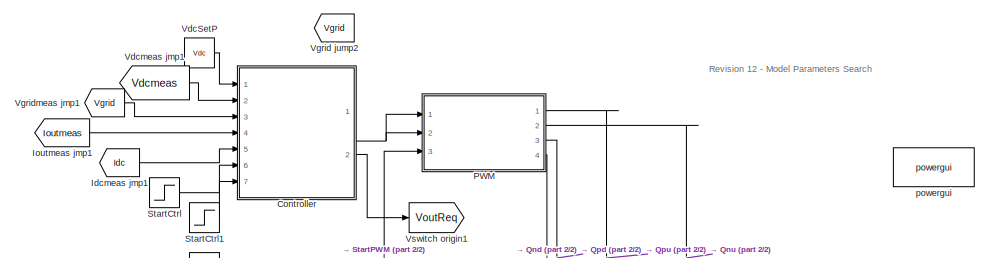
[diagram: root canvas - part 1/2, full width, top band]
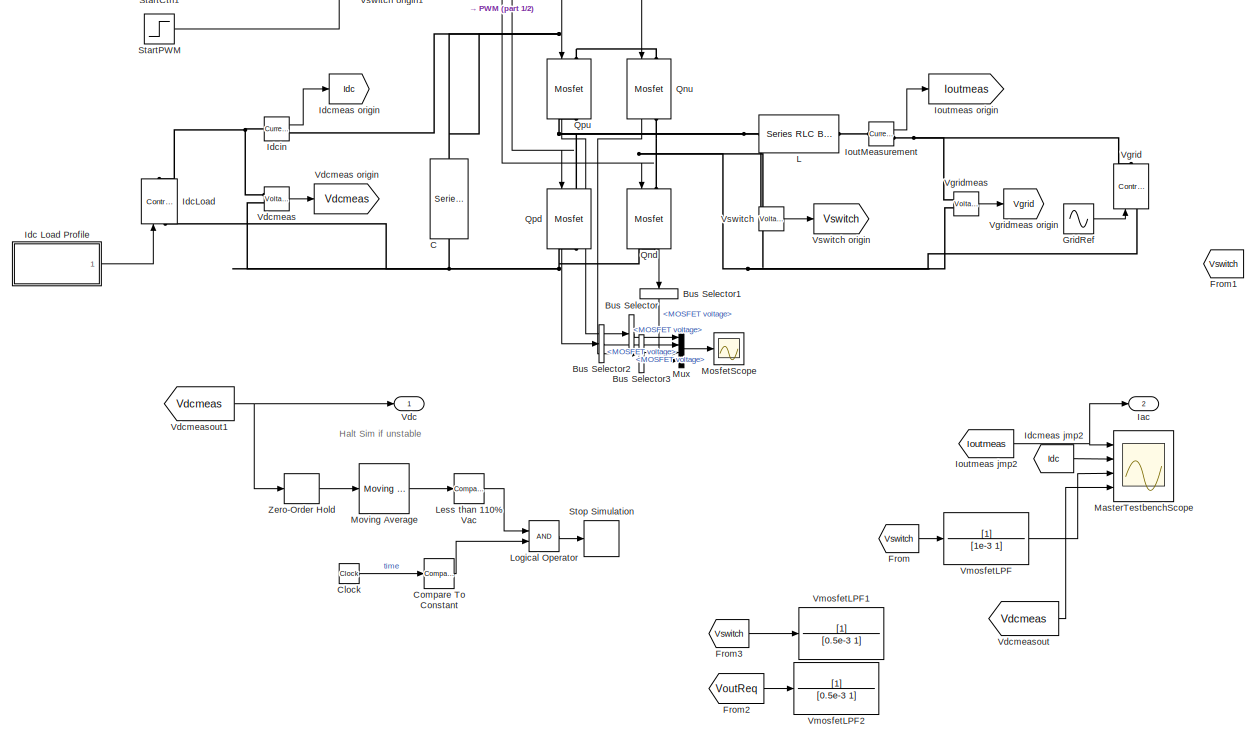
[diagram: root canvas - part 2/2, most of the canvas]
MODEL slx_c6c2b935a5d7
KIND model
CONFIG AbsTol = auto
CONFIG EnableMultiTasking = on
CONFIG FixedStep = auto
CONFIG MaxStep = 1e-4
CONFIG MinStep = auto
CONFIG RelTol = 1e-3
CONFIG SampleTimeConstraint = Unconstrained
CONFIG Solver = VariableStepAuto
CONFIG SolverName = VariableStepAuto
CONFIG StartTime = 0.0
CONFIG StopTime = 5
BLOCK [BusSelector] Bus Selector
  OutputAsBus = off
  OutputSignals = MOSFET voltage
  Ports = [1, 1]
BLOCK [BusSelector] Bus Selector1
  OutputAsBus = off
  OutputSignals = MOSFET voltage
  Ports = [1, 1]
BLOCK [BusSelector] Bus Selector2
  OutputAsBus = off
  OutputSignals = MOSFET voltage
  Ports = [1, 1]
BLOCK [BusSelector] Bus Selector3
  OutputAsBus = off
  OutputSignals = MOSFET voltage
  Ports = [1, 1]
BLOCK [Reference] C  REF=powerlib/Elements/Series RLC Branch
  Ports = [0, 0, 0, 0, 0, 1, 1]
  SourceBlock = powerlib/Elements/Series RLC Branch
  SourceProductBaseCode = PS
  SourceProductName = Simscape Power Systems
  SourceType = Series RLC Branch
BLOCK [Clock] Clock
  Decimation = 1000
BLOCK [Reference] Compare To Constant  REF=simulink/Logic and Bit
Operations/Compare
To Constant
  Ports = [1, 1]
  SourceBlock = simulink/Logic and Bit\nOperations/Compare\nTo Constant
  SourceProductBaseCode = SL
  SourceProductName = Simulink
  SourceType = Compare To Constant
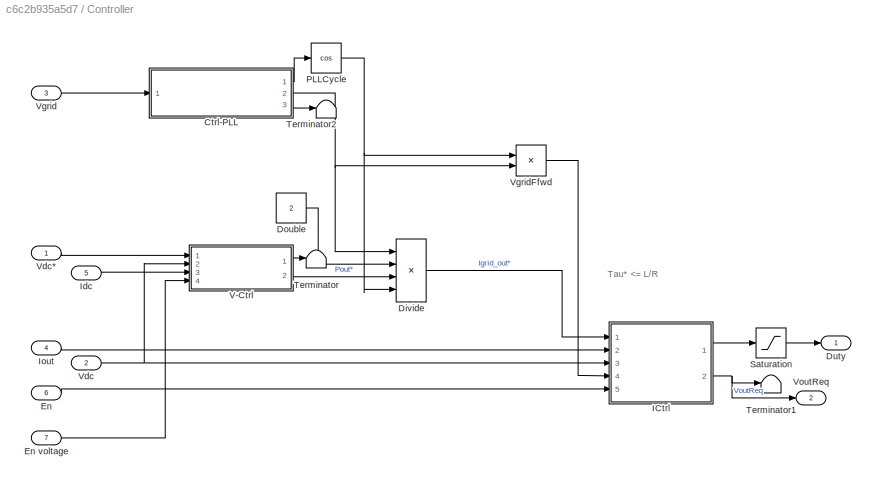
BLOCK [SubSystem] Controller
  Ports = [7, 2]
  RequestExecContextInheritance = off
  Variant = off
BLOCK [ModelReference] Controller/Ctrl-PLL
  ModelNameDialog = PLL.slx
  ModelReferenceVersion = 1.11
  Ports = [1, 3]
  Variant = off
BLOCK [Product] Controller/Divide
  InputSameDT = off
  Inputs = /***
  OutDataTypeStr = Inherit: Inherit via internal rule
  Ports = [4, 1]
  RndMeth = Floor
  SaturateOnIntegerOverflow = off
BLOCK [Constant] Controller/Double
  Value = 2
BLOCK [Outport] Controller/Duty
  IconDisplay = Port number
BLOCK [Inport] Controller/En
  IconDisplay = Port number
  Port = 6
BLOCK [Inport] Controller/En voltage
  IconDisplay = Port number
  Port = 7
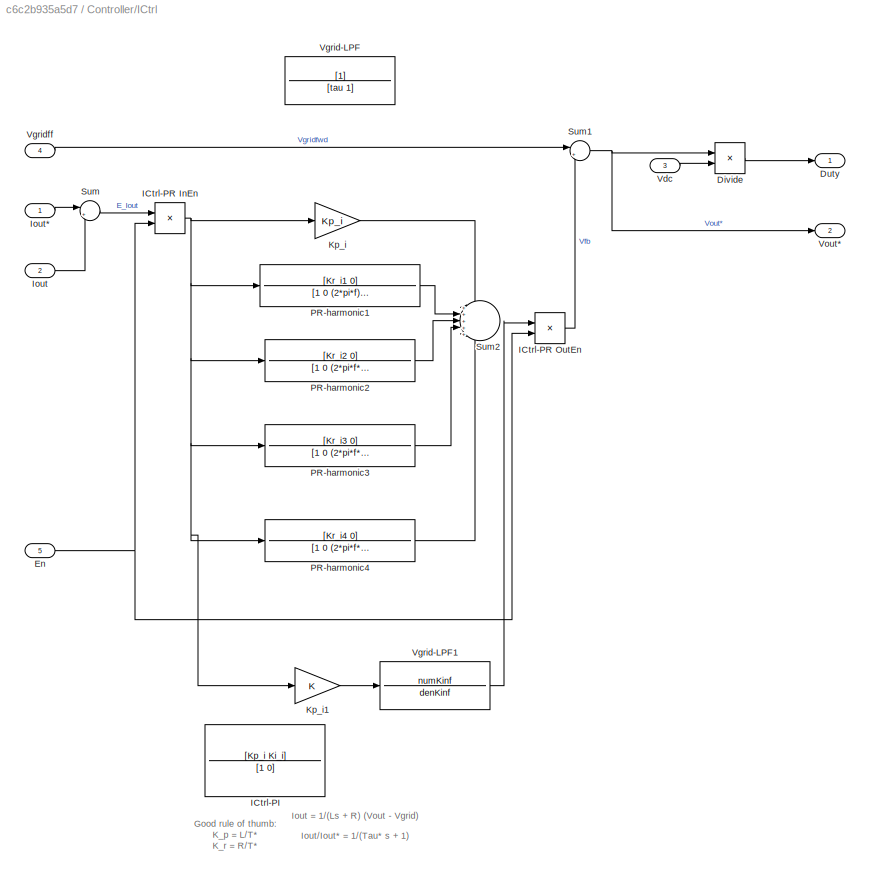
BLOCK [SubSystem] Controller/ICtrl
  Ports = [5, 2]
  RequestExecContextInheritance = off
  TreatAsAtomicUnit = on
  Variant = off
BLOCK [Product] Controller/ICtrl/Divide
  InputSameDT = off
  Inputs = */
  OutDataTypeStr = Inherit: Inherit via internal rule
  Ports = [2, 1]
  RndMeth = Floor
  SaturateOnIntegerOverflow = off
BLOCK [Outport] Controller/ICtrl/Duty
  IconDisplay = Port number
BLOCK [Inport] Controller/ICtrl/En
  IconDisplay = Port number
  Port = 5
BLOCK [TransferFcn] Controller/ICtrl/ICtrl-PI
  Commented = through
  Denominator = [1 0]
  Numerator = [Kp_i Ki_i]
BLOCK [Product] Controller/ICtrl/ICtrl-PR InEn
  InputSameDT = off
  OutDataTypeStr = Inherit: Inherit via internal rule
  Ports = [2, 1]
  RndMeth = Floor
  SaturateOnIntegerOverflow = off
BLOCK [Product] Controller/ICtrl/ICtrl-PR OutEn
  InputSameDT = off
  OutDataTypeStr = Inherit: Inherit via internal rule
  Ports = [2, 1]
  RndMeth = Floor
  SaturateOnIntegerOverflow = off
BLOCK [Inport] Controller/ICtrl/Iout
  IconDisplay = Port number
  Port = 2
BLOCK [Inport] Controller/ICtrl/Iout*
  IconDisplay = Port number
BLOCK [Gain] Controller/ICtrl/Kp_i
  Gain = Kp_i
  OutDataTypeStr = Inherit: Inherit via internal rule
  ParamDataTypeStr = Inherit: Inherit via internal rule
  SaturateOnIntegerOverflow = off
BLOCK [Gain] Controller/ICtrl/Kp_i1
  OutDataTypeStr = Inherit: Inherit via internal rule
  ParamDataTypeStr = Inherit: Inherit via internal rule
  SaturateOnIntegerOverflow = off
BLOCK [TransferFcn] Controller/ICtrl/PR-harmonic1
  Denominator = [1 0 (2*pi*f)^2]
  Numerator = [Kr_i1 0]
BLOCK [TransferFcn] Controller/ICtrl/PR-harmonic2
  Denominator = [1 0 (2*pi*f*3)^2]
  Numerator = [Kr_i2 0]
BLOCK [TransferFcn] Controller/ICtrl/PR-harmonic3
  Denominator = [1 0 (2*pi*f*5)^2]
  Numerator = [Kr_i3 0]
BLOCK [TransferFcn] Controller/ICtrl/PR-harmonic4
  Denominator = [1 0 (2*pi*f*7)^2]
  Numerator = [Kr_i4 0]
BLOCK [Sum] Controller/ICtrl/Sum
  IconShape = round
  InputSameDT = off
  Inputs = |+-
  OutDataTypeStr = Inherit: Inherit via internal rule
  Ports = [2, 1]
  SaturateOnIntegerOverflow = off
BLOCK [Sum] Controller/ICtrl/Sum1
  IconShape = round
  InputSameDT = off
  Inputs = |++
  OutDataTypeStr = Inherit: Inherit via internal rule
  Ports = [2, 1]
  SaturateOnIntegerOverflow = off
BLOCK [Sum] Controller/ICtrl/Sum2
  IconShape = round
  InputSameDT = off
  Inputs = +++++
  OutDataTypeStr = Inherit: Inherit via internal rule
  Ports = [5, 1]
  SaturateOnIntegerOverflow = off
BLOCK [Inport] Controller/ICtrl/Vdc
  IconDisplay = Port number
  Port = 3
BLOCK [TransferFcn] Controller/ICtrl/Vgrid-LPF
  Commented = on
  Denominator = [tau 1]
BLOCK [TransferFcn] Controller/ICtrl/Vgrid-LPF1
  Denominator = denKinf
  Numerator = numKinf
BLOCK [Inport] Controller/ICtrl/Vgridff
  IconDisplay = Port number
  Port = 4
BLOCK [Outport] Controller/ICtrl/Vout*
  IconDisplay = Port number
  Port = 2
BLOCK [Inport] Controller/Idc
  IconDisplay = Port number
  Port = 5
BLOCK [Inport] Controller/Iout
  IconDisplay = Port number
  Port = 4
BLOCK [Trigonometry] Controller/PLLCycle
  Operator = cos
  Ports = [1, 1]
BLOCK [Saturate] Controller/Saturation
  InputPortMap = u0
  LinearizeAsGain = off
  LowerLimit = -1
  Ports = [1, 1]
  UpperLimit = 1
BLOCK [Terminator] Controller/Terminator
BLOCK [Terminator] Controller/Terminator1
BLOCK [Terminator] Controller/Terminator2
BLOCK [SubSystem] Controller/V-Ctrl
  Ports = [4, 2]
  RequestExecContextInheritance = off
  TreatAsAtomicUnit = on
  Variant = off
BLOCK [Inport] Controller/V-Ctrl/En
  IconDisplay = Port number
  Port = 4
BLOCK [Inport] Controller/V-Ctrl/Idc
  IconDisplay = Port number
  Port = 3
BLOCK [TransferFcn] Controller/V-Ctrl/Idc-Feedfwd-LPF
  Commented = on
  Denominator = [(1/20) 1]
BLOCK [Product] Controller/V-Ctrl/IdcEn
  Commented = on
  InputSameDT = off
  OutDataTypeStr = Inherit: Inherit via internal rule
  Ports = [2, 1]
  RndMeth = Floor
  SaturateOnIntegerOverflow = off
BLOCK [Outport] Controller/V-Ctrl/Idc_out*
  IconDisplay = Port number
BLOCK [TransferFcn] Controller/V-Ctrl/NotchF-2w
  Denominator = [1 2*bw w_n^2]
  Numerator = [1 floorcoeff (w_n^2)]
BLOCK [Product] Controller/V-Ctrl/Pout calc
  InputSameDT = off
  Inputs = **
  OutDataTypeStr = Inherit: Inherit via internal rule
  Ports = [2, 1]
  RndMeth = Floor
  SaturateOnIntegerOverflow = off
BLOCK [Outport] Controller/V-Ctrl/Pout*
  IconDisplay = Port number
  Port = 2
BLOCK [Saturate] Controller/V-Ctrl/Saturation
  InputPortMap = u0
  LinearizeAsGain = off
  LowerLimit = -2*Idcmax
  Ports = [1, 1]
  UpperLimit = 2*Idcmax
BLOCK [Sum] Controller/V-Ctrl/Sum
  IconShape = round
  InputSameDT = off
  Inputs = |+-
  OutDataTypeStr = Inherit: Inherit via internal rule
  Ports = [2, 1]
  SaturateOnIntegerOverflow = off
BLOCK [Sum] Controller/V-Ctrl/Sum1
  IconShape = round
  InputSameDT = off
  Inputs = |++
  OutDataTypeStr = Inherit: Inherit via internal rule
  Ports = [2, 1]
  SaturateOnIntegerOverflow = off
BLOCK [TransferFcn] Controller/V-Ctrl/VCtrl-PI
  Denominator = [1 0]
  Numerator = [Kp_v Ki_v]
BLOCK [Inport] Controller/V-Ctrl/Vdc
  IconDisplay = Port number
  Port = 2
BLOCK [Inport] Controller/V-Ctrl/Vdc*
  IconDisplay = Port number
BLOCK [Product] Controller/V-Ctrl/VdcEn
  InputSameDT = off
  OutDataTypeStr = Inherit: Inherit via internal rule
  Ports = [2, 1]
  RndMeth = Floor
  SaturateOnIntegerOverflow = off
BLOCK [Inport] Controller/Vdc
  IconDisplay = Port number
  Port = 2
BLOCK [Inport] Controller/Vdc*
  IconDisplay = Port number
BLOCK [Inport] Controller/Vgrid
  IconDisplay = Port number
  Port = 3
BLOCK [Product] Controller/VgridFfwd
  InputSameDT = off
  Inputs = **
  OutDataTypeStr = Inherit: Inherit via internal rule
  Ports = [2, 1]
  RndMeth = Floor
  SaturateOnIntegerOverflow = off
BLOCK [Outport] Controller/VoutReq
  IconDisplay = Port number
  Port = 2
BLOCK [From] From
  GotoTag = Vswitch
BLOCK [From] From1
  GotoTag = Vswitch
BLOCK [From] From2
  GotoTag = VoutReq
BLOCK [From] From3
  GotoTag = Vswitch
BLOCK [Sin] GridRef
  Amplitude = Vacpp
  Frequency = 2*pi*f
  Phase = pi
  Ports = [0, 1]
  SampleTime = 0
BLOCK [Outport] Iac
  IconDisplay = Port number
  Port = 2
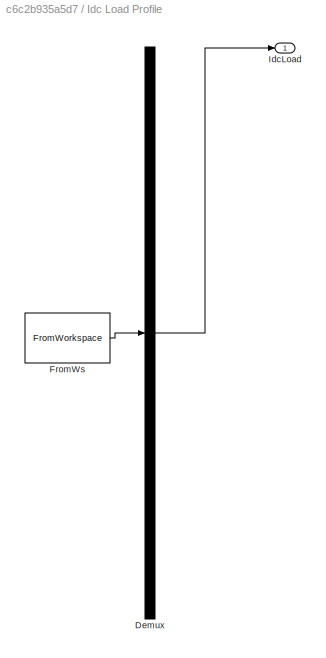
BLOCK [SubSystem] Idc Load Profile
  ClipboardFcn = sigbuilder_block('clipboard');
  CloseFcn = sigbuilder_block('close');
  ContinueFcn = sigbuilder_block('continue');
  CopyFcn = sigbuilder_block('copy');
  DeleteFcn = sigbuilder_block('delete');
  LoadFcn = sigbuilder_block('load');
  MaskHideContents = on
  ModelCloseFcn = sigbuilder_block('modelClose');
  NameChangeFcn = sigbuilder_block('namechange');
  OpenFcn = sigbuilder_block('open',[6 30 1012.5 447.75 ]);
  PauseFcn = sigbuilder_block('pause');
  Ports = [0, 1]
  PreSaveFcn = sigbuilder_block('preSave');
  RequestExecContextInheritance = off
  StartFcn = sigbuilder_block('start');
  StopFcn = sigbuilder_block('stop');
  Tag = STV Subsys
  Variant = off
BLOCK [Demux] Idc Load Profile/Demux
  Outputs = 1
  Ports = [1, 1]
  Tag = STV Demux
BLOCK [FromWorkspace] Idc Load Profile/FromWs
  SampleTime = 0
  Tag = STV FromWs
  VariableName = tuvar
  ZeroCross = on
BLOCK [Outport] Idc Load Profile/IdcLoad
  IconDisplay = Port number
  Tag = STV Outport
BLOCK [Reference] IdcLoad  REF=powerlib/Electrical
Sources/Controlled Current Source
  Ports = [1, 0, 0, 0, 0, 1, 1]
  SourceBlock = powerlib/Electrical\nSources/Controlled Current Source
  SourceProductBaseCode = PS
  SourceProductName = Simscape Power Systems
  SourceType = Controlled Current Source
BLOCK [Reference] Idcin  REF=powerlib/Measurements/Current Measurement
  Ports = [0, 1, 0, 0, 0, 1, 1]
  SourceBlock = powerlib/Measurements/Current Measurement
  SourceProductBaseCode = PS
  SourceProductName = Simscape Power Systems
  SourceType = Current Measurement
  UserDataPersistent = on
BLOCK [From] Idcmeas jmp1
  GotoTag = Idc
BLOCK [From] Idcmeas jmp2
  GotoTag = Idc
BLOCK [Goto] Idcmeas origin
  GotoTag = Idc
BLOCK [Reference] IoutMeasurement  REF=powerlib/Measurements/Current Measurement
  Ports = [0, 1, 0, 0, 0, 1, 1]
  SourceBlock = powerlib/Measurements/Current Measurement
  SourceProductBaseCode = PS
  SourceProductName = Simscape Power Systems
  SourceType = Current Measurement
  UserDataPersistent = on
BLOCK [From] Ioutmeas jmp1
  GotoTag = Ioutmeas
BLOCK [From] Ioutmeas jmp2
  GotoTag = Ioutmeas
BLOCK [Goto] Ioutmeas origin
  GotoTag = Ioutmeas
BLOCK [Reference] L  REF=powerlib/Elements/Series RLC Branch
  Ports = [0, 0, 0, 0, 0, 1, 1]
  SourceBlock = powerlib/Elements/Series RLC Branch
  SourceProductBaseCode = PS
  SourceProductName = Simscape Power Systems
  SourceType = Series RLC Branch
BLOCK [Reference] Less than 110% Vac  REF=simulink/Logic and Bit
Operations/Compare
To Constant
  Ports = [1, 1]
  SourceBlock = simulink/Logic and Bit\nOperations/Compare\nTo Constant
  SourceProductBaseCode = SL
  SourceProductName = Simulink
  SourceType = Compare To Constant
BLOCK [Logic] Logical Operator
  AllPortsSameDT = off
  OutDataTypeStr = boolean
  Ports = [2, 1]
BLOCK [Scope] MasterTestbenchScope
  NumInputPorts = 4
  Ports = [4]
  ScopeSpecificationString = Simulink.scopes.TimeScopeBlockCfg('CurrentConfiguration', extmgr.ConfigurationSet(extmgr.Configuration('Core','General UI',true),extmgr.Configuration('Core','Source UI',true),extmgr.Configuration('Sources','WiredSimulink',true),extmgr.Configuration('Visuals','Time Domain',true,'SerializedDisplays',{struct('MinYLimReal','-80.59413','MaxYLimReal','89.89924','YLabelReal','','MinYLimMag','0.00000','Ma...<+1850ch>
BLOCK [Scope] MosfetScope
  NumInputPorts = 1
  Ports = [1]
  ScopeSpecificationString = Simulink.scopes.TimeScopeBlockCfg('CurrentConfiguration', extmgr.ConfigurationSet(extmgr.Configuration('Core','General UI',true),extmgr.Configuration('Core','Source UI',true),extmgr.Configuration('Sources','WiredSimulink',true,'DataLoggingVariableName','ScopeData1'),extmgr.Configuration('Visuals','Time Domain',true,'SerializedDisplays',{struct('MinYLimReal','-11.23805','MaxYLimReal','85.49034','YL...<+1561ch>
BLOCK [Reference] Moving Average  REF=dspstat3/Moving
Average
  Commented = through
  Ports = [1, 1]
  SourceBlock = dspstat3/Moving\nAverage
  SourceProductBaseCode = DS
  SourceProductName = DSP System Toolbox
  SourceType = dsp.MovingAverage
BLOCK [Mux] Mux
  DisplayOption = bar
  Ports = [4, 1]
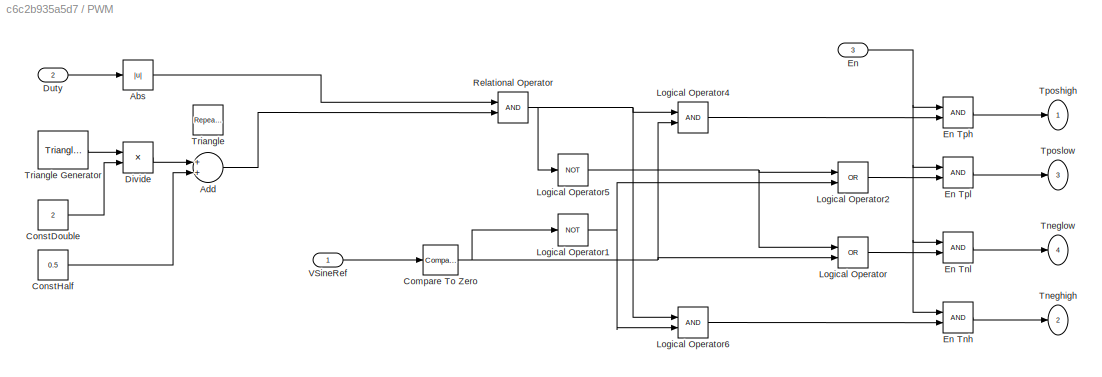
BLOCK [SubSystem] PWM
  Ports = [3, 4]
  RequestExecContextInheritance = off
  Variant = off
BLOCK [Abs] PWM/Abs
  SaturateOnIntegerOverflow = off
BLOCK [Sum] PWM/Add
  InputSameDT = off
  OutDataTypeStr = Inherit: Inherit via internal rule
  Ports = [2, 1]
  SaturateOnIntegerOverflow = off
BLOCK [Reference] PWM/Compare To Zero  REF=simulink/Logic and Bit
Operations/Compare
To Zero
  Ports = [1, 1]
  SourceBlock = simulink/Logic and Bit\nOperations/Compare\nTo Zero
  SourceProductBaseCode = SL
  SourceProductName = Simulink
  SourceType = Compare To Zero
BLOCK [Constant] PWM/ConstDouble
  Value = 2
BLOCK [Constant] PWM/ConstHalf
  Value = 0.5
BLOCK [Product] PWM/Divide
  InputSameDT = off
  Inputs = */
  OutDataTypeStr = Inherit: Inherit via internal rule
  Ports = [2, 1]
  RndMeth = Floor
  SaturateOnIntegerOverflow = off
BLOCK [Inport] PWM/Duty
  IconDisplay = Port number
  Port = 2
BLOCK [Inport] PWM/En
  IconDisplay = Port number
  Port = 3
BLOCK [Logic] PWM/En Tnh
  AllPortsSameDT = off
  OutDataTypeStr = boolean
  Ports = [2, 1]
BLOCK [Logic] PWM/En Tnl
  AllPortsSameDT = off
  OutDataTypeStr = boolean
  Ports = [2, 1]
BLOCK [Logic] PWM/En Tph
  AllPortsSameDT = off
  OutDataTypeStr = boolean
  Ports = [2, 1]
BLOCK [Logic] PWM/En Tpl
  AllPortsSameDT = off
  OutDataTypeStr = boolean
  Ports = [2, 1]
BLOCK [Logic] PWM/Logical Operator
  AllPortsSameDT = off
  Operator = OR
  OutDataTypeStr = boolean
  Ports = [2, 1]
BLOCK [Logic] PWM/Logical Operator1
  AllPortsSameDT = off
  Operator = NOT
  OutDataTypeStr = boolean
  Ports = [1, 1]
BLOCK [Logic] PWM/Logical Operator2
  AllPortsSameDT = off
  Operator = OR
  OutDataTypeStr = boolean
  Ports = [2, 1]
BLOCK [Logic] PWM/Logical Operator4
  AllPortsSameDT = off
  OutDataTypeStr = boolean
  Ports = [2, 1]
BLOCK [Logic] PWM/Logical Operator5
  AllPortsSameDT = off
  Operator = NOT
  OutDataTypeStr = boolean
  Ports = [1, 1]
BLOCK [Logic] PWM/Logical Operator6
  AllPortsSameDT = off
  OutDataTypeStr = boolean
  Ports = [2, 1]
BLOCK [RelationalOperator] PWM/Relational Operator
  InputSameDT = off
  OutDataTypeStr = boolean
  Ports = [2, 1]
BLOCK [Outport] PWM/Tneghigh
  IconDisplay = Port number
  Port = 2
BLOCK [Outport] PWM/Tneglow
  IconDisplay = Port number
  Port = 4
BLOCK [Outport] PWM/Tposhigh
  IconDisplay = Port number
BLOCK [Outport] PWM/Tposlow
  IconDisplay = Port number
  Port = 3
BLOCK [Reference] PWM/Triangle  REF=simulink/Sources/Repeating
Sequence
  Commented = on
  Ports = [0, 1]
  SourceBlock = simulink/Sources/Repeating\nSequence
  SourceProductBaseCode = SL
  SourceProductName = Simulink
  SourceType = Repeating table
BLOCK [Reference] PWM/Triangle Generator  REF=powerlib_meascontrol/Pulse & Signal
Generators/Triangle
Generator
  Ports = [0, 1]
  SourceBlock = powerlib_meascontrol/Pulse & Signal\nGenerators/Triangle\nGenerator
  SourceProductBaseCode = PS
  SourceProductName = Simscape Power Systems
  SourceType = Triangle Generator
BLOCK [Inport] PWM/VSineRef
  IconDisplay = Port number
BLOCK [Reference] Qnd  REF=powerlib/Power
Electronics/Mosfet
  Ports = [1, 1, 0, 0, 0, 1, 1]
  SourceBlock = powerlib/Power\nElectronics/Mosfet
  SourceProductBaseCode = PS
  SourceProductName = Simscape Power Systems
  SourceType = Mosfet
BLOCK [Reference] Qnu  REF=powerlib/Power
Electronics/Mosfet
  Ports = [1, 1, 0, 0, 0, 1, 1]
  SourceBlock = powerlib/Power\nElectronics/Mosfet
  SourceProductBaseCode = PS
  SourceProductName = Simscape Power Systems
  SourceType = Mosfet
BLOCK [Reference] Qpd  REF=powerlib/Power
Electronics/Mosfet
  Ports = [1, 1, 0, 0, 0, 1, 1]
  SourceBlock = powerlib/Power\nElectronics/Mosfet
  SourceProductBaseCode = PS
  SourceProductName = Simscape Power Systems
  SourceType = Mosfet
BLOCK [Reference] Qpu  REF=powerlib/Power
Electronics/Mosfet
  Ports = [1, 1, 0, 0, 0, 1, 1]
  SourceBlock = powerlib/Power\nElectronics/Mosfet
  SourceProductBaseCode = PS
  SourceProductName = Simscape Power Systems
  SourceType = Mosfet
BLOCK [Step] StartCtrl
  SampleTime = 0
  Time = 0.2
BLOCK [Step] StartCtrl1
  SampleTime = 0
  Time = 0.3
BLOCK [Step] StartPWM
  SampleTime = 0
  Time = 0.2
BLOCK [Stop] Stop Simulation
BLOCK [Outport] Vdc
  IconDisplay = Port number
BLOCK [Constant] VdcSetP
  Value = Vdc
BLOCK [Reference] Vdcmeas  REF=powerlib/Measurements/Voltage Measurement
  Ports = [0, 1, 0, 0, 0, 2]
  SourceBlock = powerlib/Measurements/Voltage Measurement
  SourceProductBaseCode = PS
  SourceProductName = Simscape Power Systems
  SourceType = Voltage Measurement
  UserDataPersistent = on
BLOCK [From] Vdcmeas jmp1
  GotoTag = Vdcmeas
BLOCK [Goto] Vdcmeas origin
  GotoTag = Vdcmeas
BLOCK [From] Vdcmeasout
  GotoTag = Vdcmeas
BLOCK [From] Vdcmeasout1
  GotoTag = Vdcmeas
BLOCK [Reference] Vgrid  REF=powerlib/Electrical
Sources/Controlled Voltage Source
  Ports = [1, 0, 0, 0, 0, 1, 1]
  SourceBlock = powerlib/Electrical\nSources/Controlled Voltage Source
  SourceProductBaseCode = PS
  SourceProductName = Simscape Power Systems
  SourceType = Controlled Voltage Source
BLOCK [From] Vgrid jump2
  GotoTag = Vgrid
BLOCK [Reference] Vgridmeas  REF=powerlib/Measurements/Voltage Measurement
  Ports = [0, 1, 0, 0, 0, 2]
  SourceBlock = powerlib/Measurements/Voltage Measurement
  SourceProductBaseCode = PS
  SourceProductName = Simscape Power Systems
  SourceType = Voltage Measurement
  UserDataPersistent = on
BLOCK [From] Vgridmeas jmp1
  GotoTag = Vgrid
BLOCK [Goto] Vgridmeas origin
  GotoTag = Vgrid
BLOCK [TransferFcn] VmosfetLPF
  Denominator = [1e-3 1]
BLOCK [TransferFcn] VmosfetLPF1
  Denominator = [0.5e-3 1]
BLOCK [TransferFcn] VmosfetLPF2
  Denominator = [0.5e-3 1]
BLOCK [Reference] Vswitch  REF=powerlib/Measurements/Voltage Measurement
  Ports = [0, 1, 0, 0, 0, 2]
  SourceBlock = powerlib/Measurements/Voltage Measurement
  SourceProductBaseCode = PS
  SourceProductName = Simscape Power Systems
  SourceType = Voltage Measurement
  UserDataPersistent = on
BLOCK [Goto] Vswitch origin
  GotoTag = Vswitch
BLOCK [Goto] Vswitch origin1
  GotoTag = VoutReq
BLOCK [ZeroOrderHold] Zero-Order Hold
  Commented = through
  SampleTime = -1
BLOCK [Reference] powergui  REF=powerlib/powergui
  Ports = []
  Priority = 1
  SourceBlock = powerlib/powergui
  SourceProductBaseCode = PS
  SourceProductName = Simscape Power Systems
  SourceType = PSB option menu block
ANNOTATION (root): Revision 12 - Model Parameters Search
ANNOTATION (root): Halt Sim if unstable
ANNOTATION Controller: Tau* <= L/R
ANNOTATION Controller/ICtrl: Good rule of thumb: K_p = L/T* K_r = R/T*
ANNOTATION Controller/ICtrl: Iout = 1/(Ls + R) (Vout - Vgrid)
ANNOTATION Controller/ICtrl: Iout/Iout* = 1/(Tau* s + 1)
ANNOTATION Controller/V-Ctrl: Notch: basics: http://ctms.engin.umich.edu/CTMS/index.php?aux=Extras_Notch http://www.analog.com<userpath>/training-seminars/design-handbooks/Basic-Linear-Design/Chapter8.pdf imnpl: https://www.researchgate.net/post/How_to_implement_a_digital_notch_filter by A. G. Constantinides : https://www.researchgate.net/publication/3391307_Digital_notch_filters
ANNOTATION Controller/V-Ctrl: Idc_out*
ANNOTATION Controller/V-Ctrl: Vdc = 1/Cs (Idc_in - Idc_out) =(-1/Cs) Idc_out + (1/Cs) Idc_in
LINE Bus Selector1:1 -> Mux:4
LINE Bus Selector2:1 -> Mux:2
LINE Bus Selector3:1 -> Mux:3
LINE Bus Selector:1 -> Mux:1
LINE Clock:1 -> Compare To Constant:1
LINE Compare To Constant:1 -> Logical Operator:2
LINE Controller/Ctrl-PLL:1 -> Controller/PLLCycle:1
NET Controller/Ctrl-PLL:2 -> Controller/Divide:1, Controller/VgridFfwd:2
LINE Controller/Ctrl-PLL:3 -> Controller/Terminator2:1
LINE Controller/Divide:1 -> Controller/ICtrl:1
LINE Controller/Double:1 -> Controller/Divide:2
LINE Controller/En voltage:1 -> Controller/V-Ctrl:4
LINE Controller/En:1 -> Controller/ICtrl:5
LINE Controller/ICtrl/Divide:1 -> Controller/ICtrl/Duty:1
NET Controller/ICtrl/En:1 -> Controller/ICtrl/ICtrl-PR InEn:2, Controller/ICtrl/ICtrl-PR OutEn:2
NET Controller/ICtrl/ICtrl-PR InEn:1 -> Controller/ICtrl/Kp_i1:1, Controller/ICtrl/Kp_i:1, Controller/ICtrl/PR-harmonic1:1, Controller/ICtrl/PR-harmonic2:1, Controller/ICtrl/PR-harmonic3:1, Controller/ICtrl/PR-harmonic4:1
LINE Controller/ICtrl/ICtrl-PR OutEn:1 -> Controller/ICtrl/Sum1:2
LINE Controller/ICtrl/Iout*:1 -> Controller/ICtrl/Sum:1
LINE Controller/ICtrl/Iout:1 -> Controller/ICtrl/Sum:2
LINE Controller/ICtrl/Kp_i1:1 -> Controller/ICtrl/Vgrid-LPF1:1
LINE Controller/ICtrl/Kp_i:1 -> Controller/ICtrl/Sum2:1
LINE Controller/ICtrl/PR-harmonic1:1 -> Controller/ICtrl/Sum2:2
LINE Controller/ICtrl/PR-harmonic2:1 -> Controller/ICtrl/Sum2:3
LINE Controller/ICtrl/PR-harmonic3:1 -> Controller/ICtrl/Sum2:4
LINE Controller/ICtrl/PR-harmonic4:1 -> Controller/ICtrl/Sum2:5
NET Controller/ICtrl/Sum1:1 -> Controller/ICtrl/Divide:1, Controller/ICtrl/Vout*:1
LINE Controller/ICtrl/Sum:1 -> Controller/ICtrl/ICtrl-PR InEn:1
LINE Controller/ICtrl/Vdc:1 -> Controller/ICtrl/Divide:2
LINE Controller/ICtrl/Vgrid-LPF1:1 -> Controller/ICtrl/ICtrl-PR OutEn:1
LINE Controller/ICtrl/Vgridff:1 -> Controller/ICtrl/Sum1:1
LINE Controller/ICtrl:1 -> Controller/Saturation:1
NET Controller/ICtrl:2 -> Controller/Terminator1:1, Controller/VoutReq:1
LINE Controller/Idc:1 -> Controller/V-Ctrl:3
LINE Controller/Iout:1 -> Controller/ICtrl:2
NET Controller/PLLCycle:1 -> Controller/Divide:4, Controller/VgridFfwd:1
LINE Controller/Saturation:1 -> Controller/Duty:1
NET Controller/V-Ctrl/En:1 -> Controller/V-Ctrl/IdcEn:2, Controller/V-Ctrl/VdcEn:2
LINE Controller/V-Ctrl/Idc-Feedfwd-LPF:1 -> Controller/V-Ctrl/Sum1:2
LINE Controller/V-Ctrl/Idc:1 -> Controller/V-Ctrl/IdcEn:1
LINE Controller/V-Ctrl/IdcEn:1 -> Controller/V-Ctrl/Idc-Feedfwd-LPF:1
LINE Controller/V-Ctrl/NotchF-2w:1 -> Controller/V-Ctrl/VdcEn:1
LINE Controller/V-Ctrl/Pout calc:1 -> Controller/V-Ctrl/Pout*:1
NET Controller/V-Ctrl/Saturation:1 -> Controller/V-Ctrl/Idc_out*:1, Controller/V-Ctrl/Pout calc:1
LINE Controller/V-Ctrl/Sum1:1 -> Controller/V-Ctrl/Saturation:1
LINE Controller/V-Ctrl/Sum:1 -> Controller/V-Ctrl/NotchF-2w:1
LINE Controller/V-Ctrl/VCtrl-PI:1 -> Controller/V-Ctrl/Sum1:1
LINE Controller/V-Ctrl/Vdc*:1 -> Controller/V-Ctrl/Sum:1
NET Controller/V-Ctrl/Vdc:1 -> Controller/V-Ctrl/Pout calc:2, Controller/V-Ctrl/Sum:2
LINE Controller/V-Ctrl/VdcEn:1 -> Controller/V-Ctrl/VCtrl-PI:1
LINE Controller/V-Ctrl:1 -> Controller/Terminator:1
LINE Controller/V-Ctrl:2 -> Controller/Divide:3
LINE Controller/Vdc*:1 -> Controller/V-Ctrl:1
NET Controller/Vdc:1 -> Controller/ICtrl:3, Controller/V-Ctrl:2
LINE Controller/Vgrid:1 -> Controller/Ctrl-PLL:1
LINE Controller/VgridFfwd:1 -> Controller/ICtrl:4
NET Controller:1 -> PWM:1, PWM:2
LINE Controller:2 -> Vswitch origin1:1
LINE From2:1 -> VmosfetLPF2:1
LINE From3:1 -> VmosfetLPF1:1
LINE From:1 -> VmosfetLPF:1
LINE GridRef:1 -> Vgrid:1
LINE Idc Load Profile:1 -> IdcLoad:1
LINE Idcin:1 -> Idcmeas origin:1
LINE Idcmeas jmp1:1 -> Controller:5
LINE Idcmeas jmp2:1 -> MasterTestbenchScope:2
LINE IoutMeasurement:1 -> Ioutmeas origin:1
LINE Ioutmeas jmp1:1 -> Controller:4
NET Ioutmeas jmp2:1 -> Iac:1, MasterTestbenchScope:1
LINE Less than 110% Vac:1 -> Logical Operator:1
LINE Logical Operator:1 -> Stop Simulation:1
LINE Moving Average:1 -> Less than 110% Vac:1
LINE Mux:1 -> MosfetScope:1
LINE PWM/Abs:1 -> PWM/Relational Operator:1
LINE PWM/Add:1 -> PWM/Relational Operator:2
NET PWM/Compare To Zero:1 -> PWM/Logical Operator1:1, PWM/Logical Operator4:2, PWM/Logical Operator:2
LINE PWM/ConstDouble:1 -> PWM/Divide:2
LINE PWM/ConstHalf:1 -> PWM/Add:2
LINE PWM/Divide:1 -> PWM/Add:1
LINE PWM/Duty:1 -> PWM/Abs:1
LINE PWM/En Tnh:1 -> PWM/Tneghigh:1
LINE PWM/En Tnl:1 -> PWM/Tneglow:1
LINE PWM/En Tph:1 -> PWM/Tposhigh:1
LINE PWM/En Tpl:1 -> PWM/Tposlow:1
NET PWM/En:1 -> PWM/En Tnh:1, PWM/En Tnl:1, PWM/En Tph:1, PWM/En Tpl:1
NET PWM/Logical Operator1:1 -> PWM/Logical Operator2:2, PWM/Logical Operator6:2
LINE PWM/Logical Operator2:1 -> PWM/En Tpl:2
LINE PWM/Logical Operator4:1 -> PWM/En Tph:2
NET PWM/Logical Operator5:1 -> PWM/Logical Operator2:1, PWM/Logical Operator:1
LINE PWM/Logical Operator6:1 -> PWM/En Tnh:2
LINE PWM/Logical Operator:1 -> PWM/En Tnl:2
NET PWM/Relational Operator:1 -> PWM/Logical Operator4:1, PWM/Logical Operator5:1, PWM/Logical Operator6:1
LINE PWM/Triangle Generator:1 -> PWM/Divide:1
LINE PWM/VSineRef:1 -> PWM/Compare To Zero:1
LINE PWM:1 -> Qpu:1
LINE PWM:2 -> Qnu:1
LINE PWM:3 -> Qpd:1
LINE PWM:4 -> Qnd:1
LINE Qnd:1 -> Bus Selector1:1
LINE Qnu:1 -> Bus Selector3:1
LINE Qpd:1 -> Bus Selector2:1
LINE Qpu:1 -> Bus Selector:1
LINE StartCtrl1:1 -> Controller:7
LINE StartCtrl:1 -> Controller:6
LINE StartPWM:1 -> PWM:3
LINE VdcSetP:1 -> Controller:1
LINE Vdcmeas jmp1:1 -> Controller:2
LINE Vdcmeas:1 -> Vdcmeas origin:1
NET Vdcmeasout1:1 -> Vdc:1, Zero-Order Hold:1
LINE Vdcmeasout:1 -> MasterTestbenchScope:4
LINE Vgridmeas jmp1:1 -> Controller:3
LINE Vgridmeas:1 -> Vgridmeas origin:1
LINE VmosfetLPF:1 -> MasterTestbenchScope:3
LINE Vswitch:1 -> Vswitch origin:1
LINE Zero-Order Hold:1 -> Moving Average:1
PNET net1: C:LConn1 -- Idcin:RConn1 -- Qnu:LConn1 -- Qpu:LConn1
PNET net2: C:RConn1 -- IdcLoad:LConn1 -- Qnd:RConn1 -- Qpd:RConn1 -- Vdcmeas:LConn2
PNET net3: IdcLoad:RConn1 -- Idcin:LConn1 -- Vdcmeas:LConn1
PLINE IoutMeasurement:LConn1 -- L:RConn1
PNET net4: IoutMeasurement:RConn1 -- Vgrid:RConn1 -- Vgridmeas:LConn1
PNET net5: L:LConn1 -- Qpd:LConn1 -- Qpu:RConn1 -- Vswitch:LConn1
PNET net6: Qnd:LConn1 -- Qnu:RConn1 -- Vgrid:LConn1 -- Vgridmeas:LConn2 -- Vswitch:LConn2
note: NET lines group one-source signal fan-out (src -> all destinations, sorted); 1:1 wires keep LINE; PNET lines group multi-terminal physical nets as a canonical sorted terminal list (undirected conserving connections); 2-terminal nets keep the pairwise PLINE form
